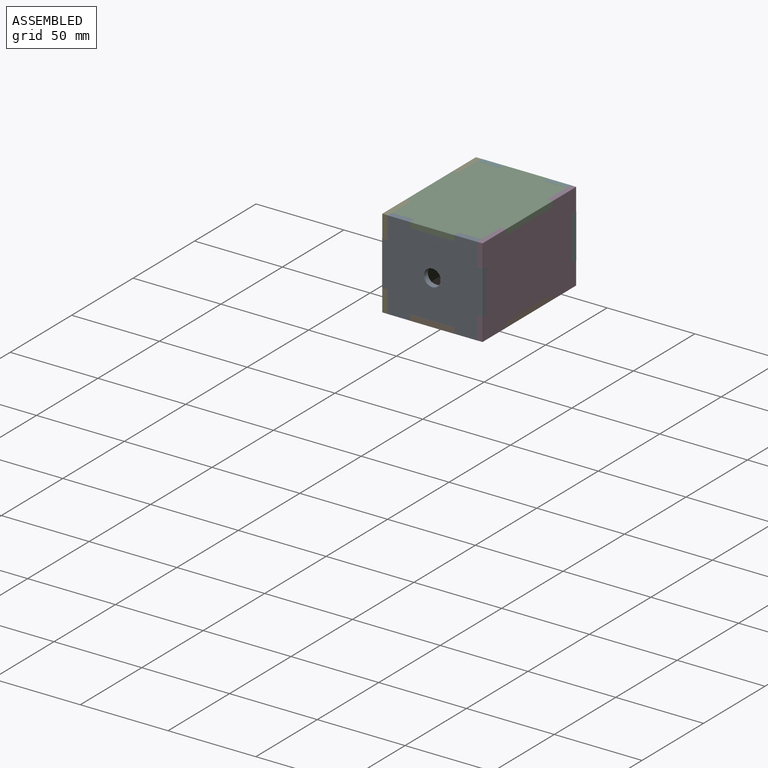
[diagram: assembled view]
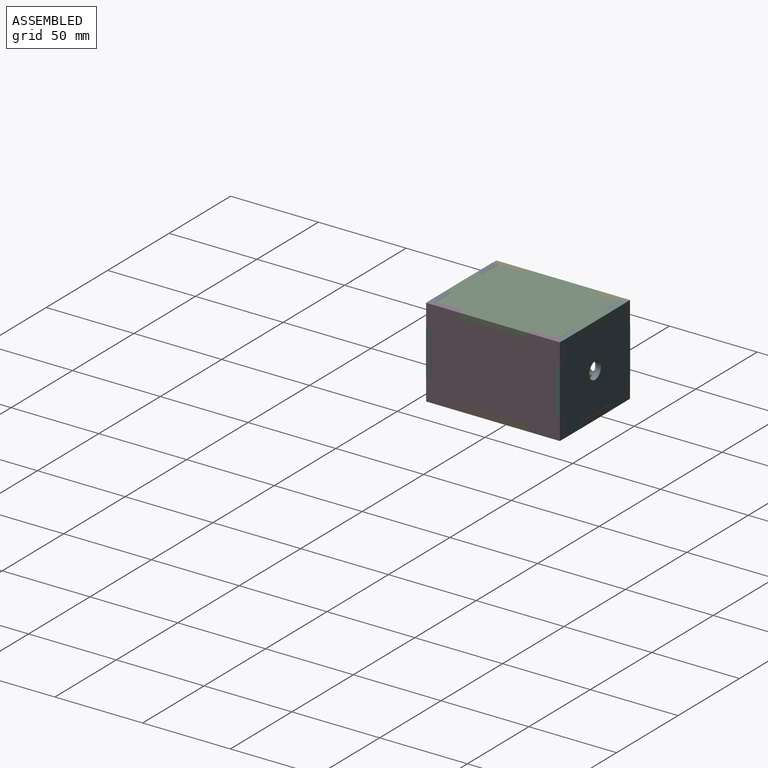
[diagram: assembled view, second angle]
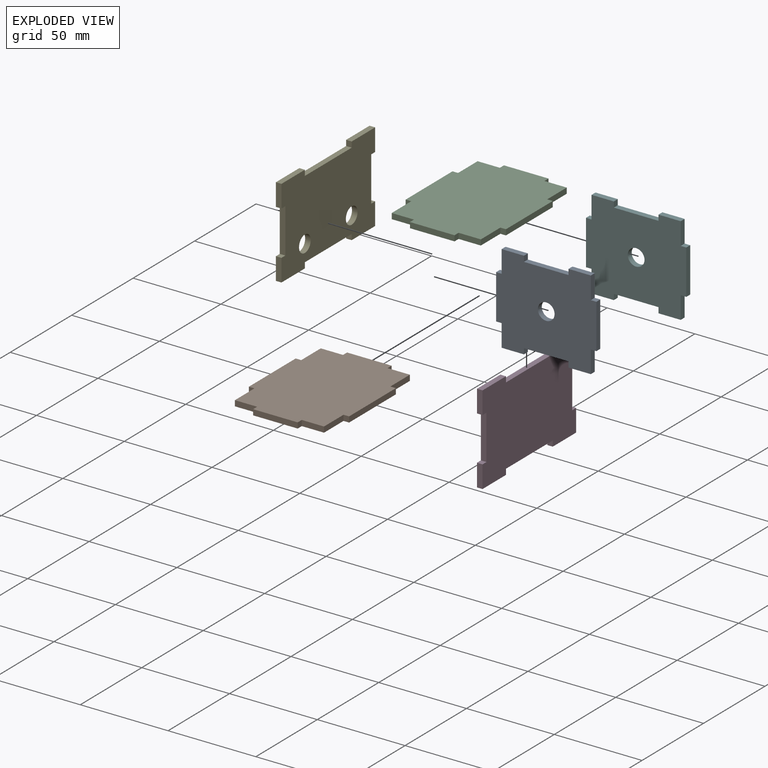
[diagram: exploded view]
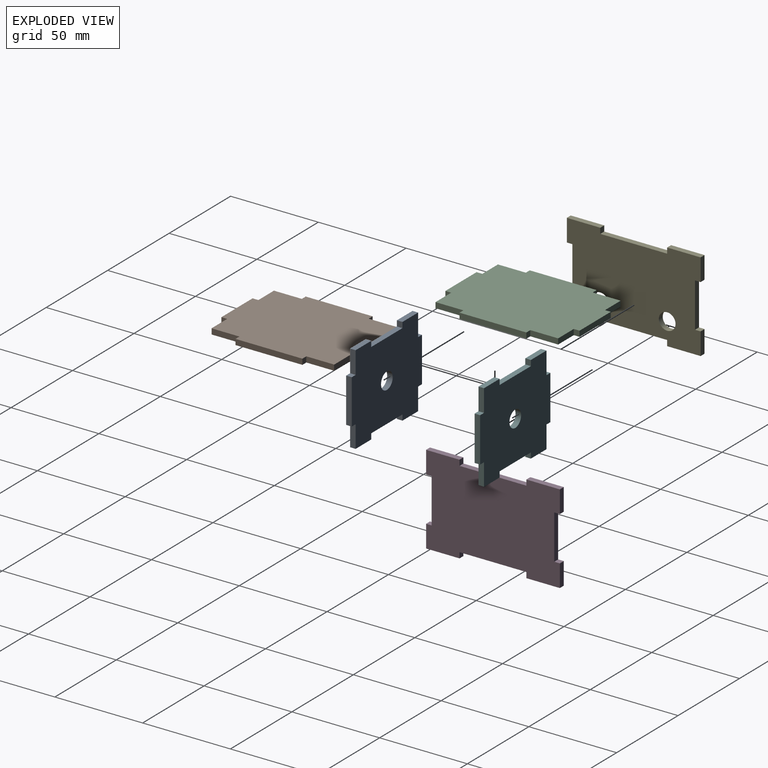
[diagram: exploded view, second angle]
ASSEMBLY  parts=6 mates=7
PART A: 23 faces, bbox 57.2x50.8x3.2 mm
  f0: plane 12.7x3.18mm, normal (-1,0,0), area 40.3mm2, adj f1,f19,f21,f22
  f1: plane 3.18x3.18mm, normal (0,1,0), area 10.1mm2, adj f0,f2,f21,f22
  f2: plane 25.4x3.18mm, normal (-1,0,0), area 80.6mm2, adj f1,f3,f21,f22
  f3: plane 3.18x3.18mm, normal (0,-1,0), area 10.1mm2, adj f2,f4,f21,f22
  f4: plane 12.7x3.18mm, normal (-1,0,0), area 40.3mm2, adj f3,f5,f21,f22
  f5: plane 12.7x3.18mm, normal (0,-1,0), area 40.3mm2, adj f4,f6,f21,f22
  f6: plane 3.18x3.18mm, normal (1,0,0), area 10.1mm2, adj f5,f7,f21,f22
  f7: plane 25.4x3.18mm, normal (0,-1,0), area 80.6mm2, adj f6,f8,f21,f22
  f8: plane 3.18x3.18mm, normal (-1,0,0), area 10.1mm2, adj f7,f9,f21,f22
  f9: plane 12.7x3.18mm, normal (0,-1,0), area 40.3mm2, adj f8,f10,f21,f22
  f10: plane 12.7x3.18mm, normal (1,0,0), area 40.3mm2, adj f9,f11,f21,f22
  f11: plane 3.18x3.18mm, normal (0,-1,0), area 10.1mm2, adj f10,f12,f21,f22
  f12: plane 25.4x3.18mm, normal (1,0,0), area 80.6mm2, adj f11,f13,f21,f22
  f13: plane 3.18x3.18mm, normal (0,1,0), area 10.1mm2, adj f12,f14,f21,f22
  f14: plane 12.7x3.18mm, normal (1,0,0), area 40.3mm2, adj f13,f15,f21,f22
  f15: plane 12.7x3.18mm, normal (0,1,0), area 40.3mm2, adj f14,f16,f21,f22
  f16: plane 3.18x3.18mm, normal (-1,0,0), area 10.1mm2, adj f15,f17,f21,f22
  f17: plane 25.4x3.18mm, normal (0,1,0), area 80.6mm2, adj f16,f18,f21,f22
  f18: plane 3.18x3.18mm, normal (1,0,0), area 10.1mm2, adj f17,f19,f21,f22
  f19: plane 12.7x3.18mm, normal (0,1,0), area 40.3mm2, adj f0,f18,f21,f22
  f20: cylinder r=4.76mm len=9.53mm, axis (0,0,-1), area 95mm2, adj f21,f22
  f21: plane 57.15x50.8mm, normal (0,0,1), area 2509.4mm2, adj f0,f1,f2,f3,f4,f5,f6,f7
  f22: plane 57.15x50.8mm, normal (0,0,-1), area 2509.4mm2, adj f0,f1,f2,f3,f4,f5,f6,f7
PART B: 22 faces, bbox 57.1x76.4x3.2 mm
  f0: plane 3.18x3.18mm, normal (0,-1,0), area 10.1mm2, adj f1,f19,f20,f21
  f1: plane 15.88x3.18mm, normal (-1,0,0), area 50.4mm2, adj f0,f2,f20,f21
  f2: plane 12.68x3.18mm, normal (0,-1,0), area 40.3mm2, adj f1,f3,f20,f21
  f3: plane 3.3x3.18mm, normal (-1,0,0), area 10.5mm2, adj f2,f4,f20,f21
  f4: plane 25.4x3.18mm, normal (0,-1,0), area 80.6mm2, adj f3,f5,f20,f21
  f5: plane 3.3x3.18mm, normal (1,0,0), area 10.5mm2, adj f4,f6,f20,f21
  f6: plane 12.68x3.18mm, normal (0,-1,0), area 40.3mm2, adj f5,f7,f20,f21
  f7: plane 15.88x3.18mm, normal (1,0,0), area 50.4mm2, adj f6,f8,f20,f21
  f8: plane 3.18x3.18mm, normal (0,-1,0), area 10.1mm2, adj f7,f9,f20,f21
  f9: plane 38.1x3.18mm, normal (1,0,0), area 121mm2, adj f8,f10,f20,f21
  f10: plane 3.18x3.18mm, normal (0,1,0), area 10.1mm2, adj f9,f11,f20,f21
  f11: plane 15.88x3.18mm, normal (1,0,0), area 50.4mm2, adj f10,f12,f20,f21
  f12: plane 12.68x3.18mm, normal (0,1,0), area 40.3mm2, adj f11,f13,f20,f21
  f13: plane 3.3x3.18mm, normal (1,0,0), area 10.5mm2, adj f12,f14,f20,f21
  f14: plane 25.4x3.18mm, normal (0,1,0), area 80.6mm2, adj f13,f15,f20,f21
  f15: plane 3.3x3.18mm, normal (-1,0,0), area 10.5mm2, adj f14,f16,f20,f21
  f16: plane 12.68x3.18mm, normal (0,1,0), area 40.3mm2, adj f15,f17,f20,f21
  f17: plane 15.88x3.18mm, normal (-1,0,0), area 50.4mm2, adj f16,f18,f20,f21
  f18: plane 3.18x3.18mm, normal (0,1,0), area 10.1mm2, adj f17,f19,f20,f21
  f19: plane 38.1x3.18mm, normal (-1,0,0), area 121mm2, adj f0,f18,f20,f21
  f20: plane 76.45x57.12mm, normal (0,0,1), area 3955.6mm2, adj f0,f1,f2,f3,f4,f5,f6,f7
  f21: plane 76.45x57.12mm, normal (0,0,-1), area 3955.6mm2, adj f0,f1,f2,f3,f4,f5,f6,f7
PART C: same geometry as B
PART D: 22 faces, bbox 50.8x76.2x3.2 mm
  f0: plane 3.18x3.18mm, normal (-1,0,0), area 10.1mm2, adj f1,f19,f20,f21
  f1: plane 25.4x3.18mm, normal (0,1,0), area 80.6mm2, adj f0,f2,f20,f21
  f2: plane 3.18x3.18mm, normal (1,0,0), area 10.1mm2, adj f1,f3,f20,f21
  f3: plane 12.7x3.18mm, normal (0,1,0), area 40.3mm2, adj f2,f4,f20,f21
  f4: plane 19.05x3.18mm, normal (-1,0,0), area 60.5mm2, adj f3,f5,f20,f21
  f5: plane 3.18x3.18mm, normal (0,-1,0), area 10.1mm2, adj f4,f6,f20,f21
  f6: plane 38.1x3.18mm, normal (-1,0,0), area 121mm2, adj f5,f7,f20,f21
  f7: plane 3.18x3.18mm, normal (0,1,0), area 10.1mm2, adj f6,f8,f20,f21
  f8: plane 19.05x3.18mm, normal (-1,0,0), area 60.5mm2, adj f7,f9,f20,f21
  f9: plane 12.7x3.18mm, normal (0,-1,0), area 40.3mm2, adj f8,f10,f20,f21
  f10: plane 3.18x3.18mm, normal (1,0,0), area 10.1mm2, adj f9,f11,f20,f21
  f11: plane 25.4x3.18mm, normal (0,-1,0), area 80.6mm2, adj f10,f12,f20,f21
  f12: plane 3.18x3.18mm, normal (-1,0,0), area 10.1mm2, adj f11,f13,f20,f21
  f13: plane 12.7x3.18mm, normal (0,-1,0), area 40.3mm2, adj f12,f14,f20,f21
  f14: plane 19.05x3.18mm, normal (1,0,0), area 60.5mm2, adj f13,f15,f20,f21
  f15: plane 3.18x3.18mm, normal (0,1,0), area 10.1mm2, adj f14,f16,f20,f21
  f16: plane 38.1x3.18mm, normal (1,0,0), area 121mm2, adj f15,f17,f20,f21
  f17: plane 3.18x3.18mm, normal (0,-1,0), area 10.1mm2, adj f16,f18,f20,f21
  f18: plane 19.05x3.18mm, normal (1,0,0), area 60.5mm2, adj f17,f19,f20,f21
  f19: plane 12.7x3.18mm, normal (0,1,0), area 40.3mm2, adj f0,f18,f20,f21
  f20: plane 76.2x50.8mm, normal (0,0,1), area 3467.7mm2, adj f0,f1,f2,f3,f4,f5,f6,f7
  f21: plane 76.2x50.8mm, normal (0,0,-1), area 3467.7mm2, adj f0,f1,f2,f3,f4,f5,f6,f7
PART E: 24 faces, bbox 50.8x76.2x3.2 mm
  f0: plane 12.7x3.18mm, normal (0,1,0), area 40.3mm2, adj f1,f20,f22,f23
  f1: plane 19.05x3.18mm, normal (-1,0,0), area 60.5mm2, adj f0,f2,f22,f23
  f2: plane 3.18x3.18mm, normal (0,-1,0), area 10.1mm2, adj f1,f3,f22,f23
  f3: plane 38.1x3.18mm, normal (-1,0,0), area 121mm2, adj f2,f4,f22,f23
  f4: plane 3.18x3.18mm, normal (0,1,0), area 10.1mm2, adj f3,f5,f22,f23
  f5: plane 19.05x3.18mm, normal (-1,0,0), area 60.5mm2, adj f4,f6,f22,f23
  f6: plane 12.7x3.18mm, normal (0,-1,0), area 40.3mm2, adj f5,f7,f22,f23
  f7: plane 3.18x3.18mm, normal (1,0,0), area 10.1mm2, adj f6,f8,f22,f23
  f8: plane 25.4x3.18mm, normal (0,-1,0), area 80.6mm2, adj f7,f9,f22,f23
  f9: plane 3.18x3.18mm, normal (-1,0,0), area 10.1mm2, adj f8,f10,f22,f23
  f10: plane 12.7x3.18mm, normal (0,-1,0), area 40.3mm2, adj f9,f11,f22,f23
  f11: plane 19.05x3.18mm, normal (1,0,0), area 60.5mm2, adj f10,f12,f22,f23
  f12: plane 3.18x3.18mm, normal (0,1,0), area 10.1mm2, adj f11,f13,f22,f23
  f13: plane 38.1x3.18mm, normal (1,0,0), area 121mm2, adj f12,f14,f22,f23
  f14: plane 3.18x3.18mm, normal (0,-1,0), area 10.1mm2, adj f13,f15,f22,f23
  f15: plane 19.05x3.18mm, normal (1,0,0), area 60.5mm2, adj f14,f16,f22,f23
  f16: plane 12.7x3.18mm, normal (0,1,0), area 40.3mm2, adj f15,f17,f22,f23
  f17: plane 3.18x3.18mm, normal (-1,0,0), area 10.1mm2, adj f16,f18,f22,f23
  f18: plane 25.4x3.18mm, normal (0,1,0), area 80.6mm2, adj f17,f20,f22,f23
  f19: cylinder r=4.76mm len=9.53mm, axis (0,0,-1), area 95mm2, adj f22,f23
  f20: plane 3.18x3.18mm, normal (1,0,0), area 10.1mm2, adj f0,f18,f22,f23
  f21: cylinder r=4.76mm len=9.53mm, axis (0,0,-1), area 95mm2, adj f22,f23
  f22: plane 76.2x50.8mm, normal (0,0,1), area 3325.2mm2, adj f0,f1,f2,f3,f4,f5,f6,f7
  f23: plane 76.2x50.8mm, normal (0,0,-1), area 3325.2mm2, adj f0,f1,f2,f3,f4,f5,f6,f7
PART F: same geometry as A
PLACE A rot(axis=(-1,0,0),90deg) t=(-9.38,-0.18,-1.01)mm
PLACE B t=(-9.38,37.98,-26.41)mm
PLACE C t=(-9.38,37.98,21.22)mm
PLACE D rot(axis=(0,-1,0),90deg) t=(19.18,39.13,-0.96)mm
PLACE E rot(axis=(0,1,0),90deg) t=(-37.94,37.98,-1.01)mm
PLACE F rot(axis=(1,0,0),90deg) t=(-9.38,76.14,-1.01)mm
MATE parallel D.f16 <-> C.f20  axis (0,0,1) through (17.59,37.98,21.22)mm
MATE parallel D.f21 <-> C.f9  axis (1,0,0) through (19.18,37.98,-1.01)mm
MATE fastened D.f21 <-> C.f9  axis (-1,0,0) through (19.18,57.03,24.39)mm
MATE fastened E.f2 <-> C.f18  axis (0,-1,0) through (-36.35,57.03,22.81)mm
MATE fastened A.f8 <-> C.f5  axis (-1,0,0) through (3.32,1.4,22.81)mm
MATE fastened D.f7 <-> B.f8  axis (0,1,0) through (17.59,18.93,-24.82)mm
MATE fastened F.f18 <-> C.f15  axis (1,0,0) through (-22.08,74.55,22.81)mm
